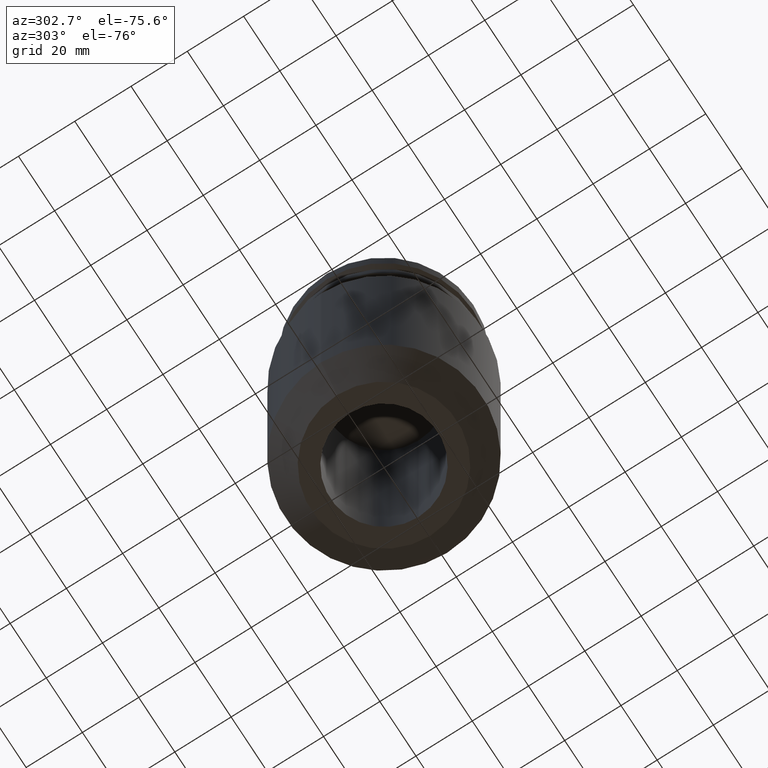
[diagram: clean part render]
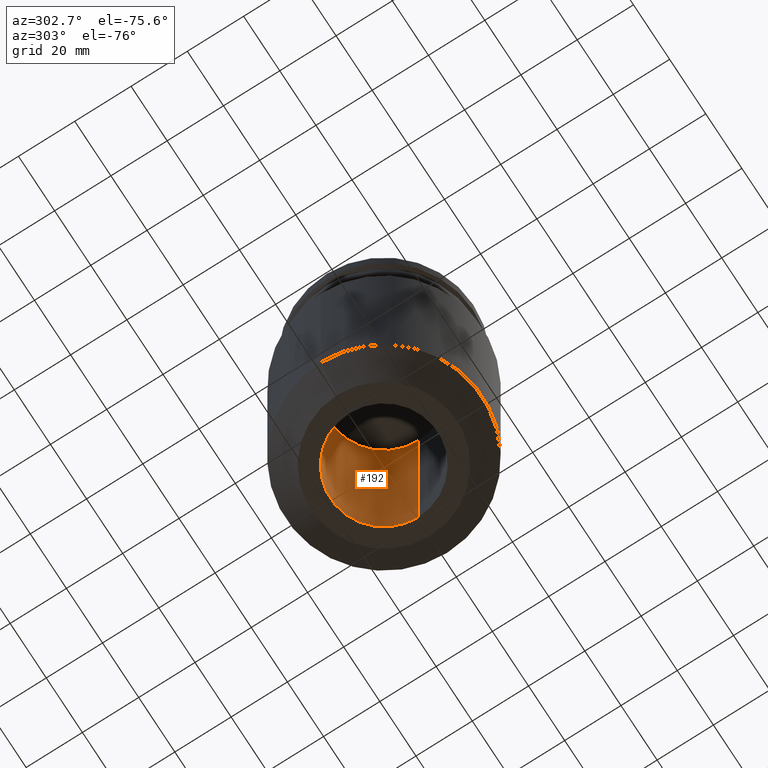
[diagram: same view with one face highlighted and labeled with its STEP entity id]
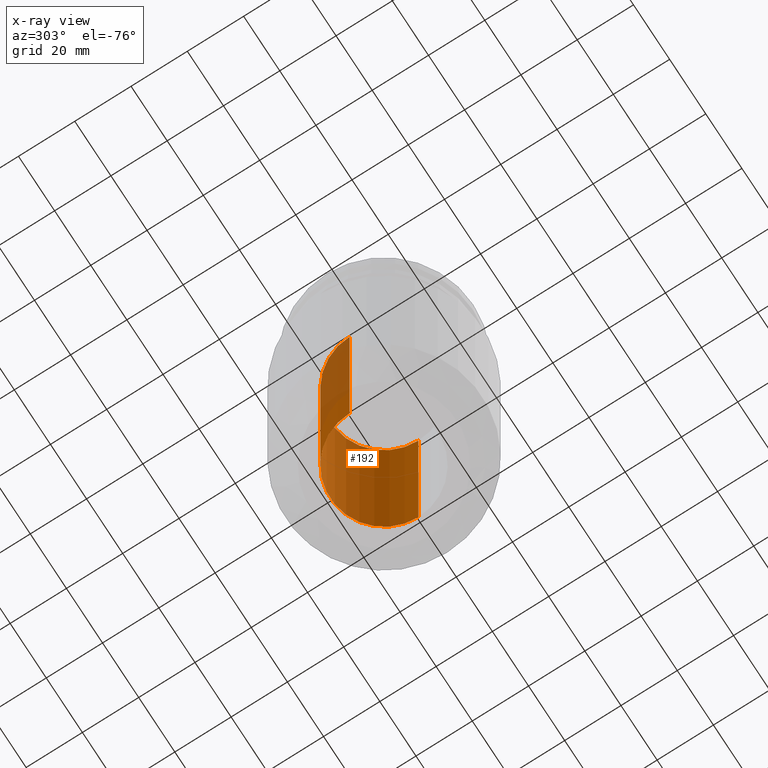
[diagram: x-ray of the same camera — body ghosted, the highlighted face saturated]
A machine part, auxiliary view. The second image highlights one B-rep face of the part: STEP entity #192.
The next image is the same camera in x-ray: the body ghosted, the highlighted face saturated — about 17% of this face is hidden behind the body in this view.
In plain terms, the highlighted cylindrical surface (partial cylindrical patch) has radius 19.05 mm, axis along (-0, -0, 1).
Its self-contained STEP definition (entity closure, byte-faithful):
#29 = CARTESIAN_POINT ( 'NONE',  ( 0.000000000000000000, 0.000000000000000000, 0.000000000000000000 ) ) ;
#30 = CARTESIAN_POINT ( 'NONE',  ( 19.05000000000000071, 0.000000000000000000, 0.000000000000000000 ) ) ;
#80 = ORIENTED_EDGE ( 'NONE', *, *, #392, .F. ) ;
#85 = CARTESIAN_POINT ( 'NONE',  ( 19.05000000000000071, 0.000000000000000000, -35.04999999999999716 ) ) ;
#91 = AXIS2_PLACEMENT_3D ( 'NONE', #29, #541, #93 ) ;
#93 = DIRECTION ( 'NONE',  ( 1.000000000000000000, 0.000000000000000000, 0.000000000000000000 ) ) ;
#109 = VERTEX_POINT ( 'NONE', #85 ) ;
#192 = ADVANCED_FACE ( 'NONE', ( #487 ), #674, .F. ) ;
#196 = ORIENTED_EDGE ( 'NONE', *, *, #249, .T. ) ;
#249 = EDGE_CURVE ( 'NONE', #109, #530, #496, .T. ) ;
#253 = CARTESIAN_POINT ( 'NONE',  ( -19.05000000000000071, 2.332952152375708043E-15, -35.04999999999999716 ) ) ;
#260 = CIRCLE ( 'NONE', #849, 19.05000000000000071 ) ;
#281 = EDGE_LOOP ( 'NONE', ( #834, #80, #716, #196 ) ) ;
#303 = DIRECTION ( 'NONE',  ( -0.000000000000000000, -0.000000000000000000, 1.000000000000000000 ) ) ;
#315 = CARTESIAN_POINT ( 'NONE',  ( 19.05000000000000071, 0.000000000000000000, -127.0000000000000000 ) ) ;
#353 = LINE ( 'NONE', #30, #616 ) ;
#366 = CARTESIAN_POINT ( 'NONE',  ( 0.000000000000000000, 0.000000000000000000, -35.04999999999999716 ) ) ;
#368 = EDGE_CURVE ( 'NONE', #545, #109, #353, .T. ) ;
#392 = EDGE_CURVE ( 'NONE', #545, #821, #260, .T. ) ;
#460 = CARTESIAN_POINT ( 'NONE',  ( -19.05000000000000071, 2.332952152375708043E-15, 0.000000000000000000 ) ) ;
#480 = CARTESIAN_POINT ( 'NONE',  ( -19.05000000000000071, 2.332952152375708043E-15, -127.0000000000000000 ) ) ;
#484 = CARTESIAN_POINT ( 'NONE',  ( 0.000000000000000000, 0.000000000000000000, -127.0000000000000000 ) ) ;
#487 = FACE_OUTER_BOUND ( 'NONE', #281, .T. ) ;
#496 = CIRCLE ( 'NONE', #599, 19.05000000000000071 ) ;
#530 = VERTEX_POINT ( 'NONE', #253 ) ;
#541 = DIRECTION ( 'NONE',  ( -0.000000000000000000, -0.000000000000000000, 1.000000000000000000 ) ) ;
#545 = VERTEX_POINT ( 'NONE', #315 ) ;
#556 = DIRECTION ( 'NONE',  ( 1.000000000000000000, 0.000000000000000000, 0.000000000000000000 ) ) ;
#599 = AXIS2_PLACEMENT_3D ( 'NONE', #366, #617, #556 ) ;
#600 = DIRECTION ( 'NONE',  ( 1.000000000000000000, 0.000000000000000000, 0.000000000000000000 ) ) ;
#616 = VECTOR ( 'NONE', #303, 1000.000000000000000 ) ;
#617 = DIRECTION ( 'NONE',  ( -0.000000000000000000, -0.000000000000000000, 1.000000000000000000 ) ) ;
#667 = EDGE_CURVE ( 'NONE', #821, #530, #793, .T. ) ;
#674 = CYLINDRICAL_SURFACE ( 'NONE', #91, 19.05000000000000071 ) ;
#709 = VECTOR ( 'NONE', #722, 1000.000000000000000 ) ;
#716 = ORIENTED_EDGE ( 'NONE', *, *, #368, .T. ) ;
#722 = DIRECTION ( 'NONE',  ( -0.000000000000000000, -0.000000000000000000, 1.000000000000000000 ) ) ;
#793 = LINE ( 'NONE', #460, #709 ) ;
#821 = VERTEX_POINT ( 'NONE', #480 ) ;
#826 = DIRECTION ( 'NONE',  ( -0.000000000000000000, -0.000000000000000000, 1.000000000000000000 ) ) ;
#834 = ORIENTED_EDGE ( 'NONE', *, *, #667, .F. ) ;
#849 = AXIS2_PLACEMENT_3D ( 'NONE', #484, #826, #600 ) ;